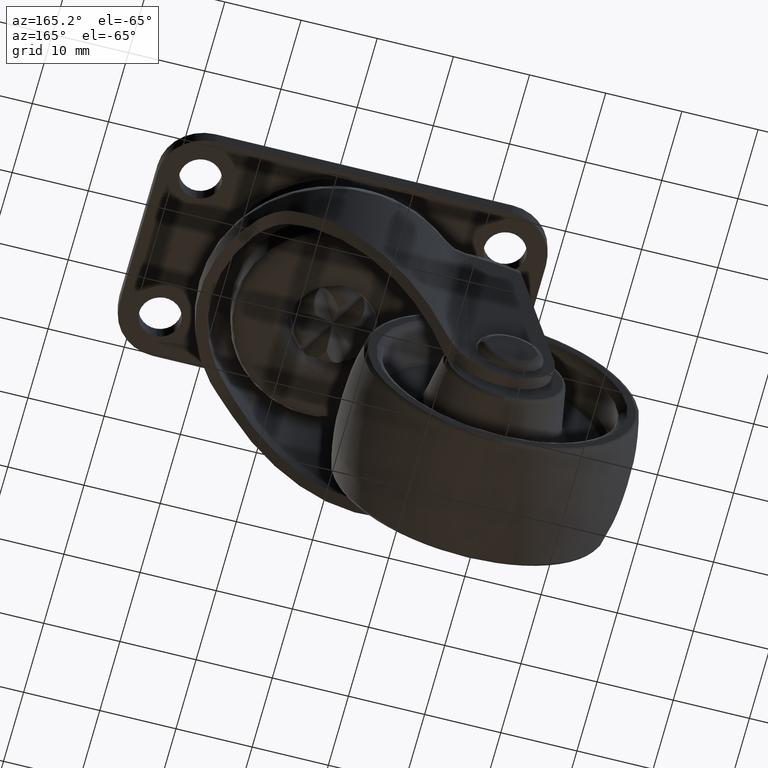
[diagram: clean part render]
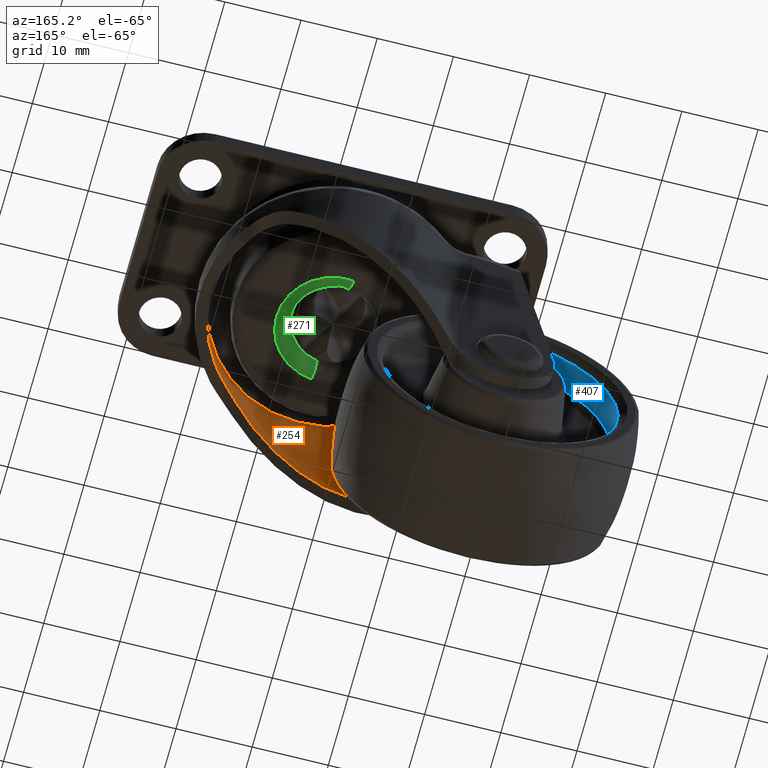
[diagram: same view with three faces highlighted in distinct colors, each labeled with its STEP entity id]
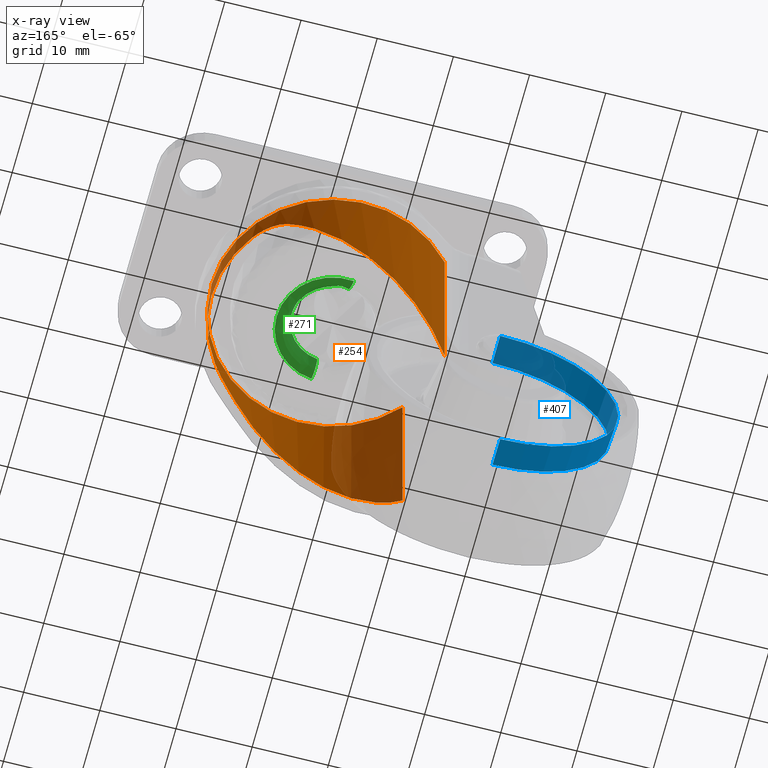
[diagram: x-ray of the same camera — body ghosted, the three highlighted faces saturated]
A machine part, auxiliary view with three faces highlighted in distinct colors.
The next image is the same camera in x-ray (body ghosted, the three faces saturated) — at least one of them is partly hidden behind the body in this view.
Their STEP definitions:

[orange] entity #254 — the highlighted cylindrical surface (partial cylindrical patch) has radius 15.9 mm, axis along (-0, 0, -1).
#254=ADVANCED_FACE('',(#729),#728,.F.);
#728=CYLINDRICAL_SURFACE('',#2879,1.59000000000E+01);
#729=FACE_OUTER_BOUND('',#2880,.T.);
#2876=CARTESIAN_POINT('',(2.00000000000E+01,-6.71818376752E-15,1.30946388245E+01));
#2877=DIRECTION('',(-1.26364830666E-16,1.52457479384E-16,-1.00000000000E+00));
#2878=DIRECTION('',(-9.99934908129E-01,-1.14096233274E-02,1.24617122930E-16));
#2879=AXIS2_PLACEMENT_3D('',#2876,#2877,#2878);
#2880=EDGE_LOOP('',(#5383,#5384,#5385,#5386,#5387,#5388,#5389,#5390));
#5383=ORIENTED_EDGE('',*,*,#6358,.F.);
#5384=ORIENTED_EDGE('',*,*,#6280,.T.);
#5385=ORIENTED_EDGE('',*,*,#6359,.T.);
#5386=ORIENTED_EDGE('',*,*,#6348,.T.);
#5387=ORIENTED_EDGE('',*,*,#6341,.T.);
#5388=ORIENTED_EDGE('',*,*,#6338,.T.);
#5389=ORIENTED_EDGE('',*,*,#6345,.T.);
#5390=ORIENTED_EDGE('',*,*,#6353,.T.);
#6280=EDGE_CURVE('',#6899,#6892,#6900,.T.);
#6338=EDGE_CURVE('',#7288,#7281,#7289,.T.);
#6341=EDGE_CURVE('',#7308,#7288,#7309,.T.);
#6345=EDGE_CURVE('',#7281,#7328,#7335,.T.);
#6348=EDGE_CURVE('',#7353,#7308,#7354,.T.);
#6353=EDGE_CURVE('',#7328,#7378,#7385,.T.);
#6358=EDGE_CURVE('',#6899,#7378,#7416,.T.);
#6359=EDGE_CURVE('',#6892,#7353,#7422,.T.);
#6892=VERTEX_POINT('',#10292);
#6899=VERTEX_POINT('',#10321);
#6900=CIRCLE('',#10325,1.59000000000E+01);
#7281=VERTEX_POINT('',#10684);
#7288=VERTEX_POINT('',#10688);
#7289=CIRCLE('',#10692,1.59000000000E+01);
#7308=VERTEX_POINT('',#10717);
#7309=(BOUNDED_CURVE() B_SPLINE_CURVE(3,(#10718,#10719,#10720,#10721,#10722,#10723,#10724,#10725,#10726,#10727,#10728,#10729,#10730,#10731,#10732,#10733,#10734,#10735,#10736,#10737,#10738,#10739,#10740,#10741,#10742),.UNSPECIFIED.,.F.,.F.) B_SPLINE_CURVE_WITH_KNOTS((4,2,2,2,2,2,2,2,2,2,2,1,4),(0.00000000000E+00,1.56250000000E-02,2.34375000000E-02,3.12500000000E-02,6.25000000000E-02,7.03125000000E-02,7.81250000000E-02,9.37500000000E-02,1.25000000000E-01,1.56250000000E-01,1.64062500000E-01,1.71875000000E-01,1.80882617281E-01),.UNSPECIFIED.) CURVE() GEOMETRIC_REPRESENTATION_ITEM() RATIONAL_B_SPLINE_CURVE((1.00000000000E+00,1.00000000000E+00,1.00000000000E+00,1.00000000000E+00,1.00000000000E+00,1.00000000000E+00,1.00000000000E+00,1.00000000000E+00,1.00000000000E+00,1.00000000000E+00,1.00000000000E+00,1.00000000000E+00,1.00000000000E+00,1.00000000000E+00,1.00000000000E+00,1.00000000000E+00,1.00000000000E+00,1.00000000000E+00,1.00000000000E+00,1.00000000000E+00,1.00000000000E+00,1.00000000000E+00,1.00000000000E+00,1.00000000000E+00,1.00000000000E+00)) REPRESENTATION_ITEM('') );
#7328=VERTEX_POINT('',#10769);
#7335=(BOUNDED_CURVE() B_SPLINE_CURVE(3,(#10773,#10774,#10775,#10776,#10777,#10778,#10779,#10780,#10781,#10782,#10783,#10784,#10785,#10786,#10787,#10788,#10789,#10790,#10791,#10792,#10793,#10794),.UNSPECIFIED.,.F.,.F.) B_SPLINE_CURVE_WITH_KNOTS((4,2,2,2,2,2,2,2,2,2,4),(8.18733335060E-01,8.43750000000E-01,8.75000000000E-01,8.82812500000E-01,8.90625000000E-01,9.06250000000E-01,9.37500000000E-01,9.45312500000E-01,9.53125000000E-01,9.68750000000E-01,1.00000000000E+00),.UNSPECIFIED.) CURVE() GEOMETRIC_REPRESENTATION_ITEM() RATIONAL_B_SPLINE_CURVE((1.00000000000E+00,1.00000000000E+00,1.00000000000E+00,1.00000000000E+00,1.00000000000E+00,1.00000000000E+00,1.00000000000E+00,1.00000000000E+00,1.00000000000E+00,1.00000000000E+00,1.00000000000E+00,1.00000000000E+00,1.00000000000E+00,1.00000000000E+00,1.00000000000E+00,1.00000000000E+00,1.00000000000E+00,1.00000000000E+00,1.00000000000E+00,1.00000000000E+00,1.00000000000E+00,1.00000000000E+00)) REPRESENTATION_ITEM('') );
#7353=VERTEX_POINT('',#10801);
#7354=(BOUNDED_CURVE() B_SPLINE_CURVE(2,(#10802,#10803,#10804),.UNSPECIFIED.,.F.,.F.) B_SPLINE_CURVE_WITH_KNOTS((3,3),(0.00000000000E+00,1.00000000000E+00),.UNSPECIFIED.) CURVE() GEOMETRIC_REPRESENTATION_ITEM() RATIONAL_B_SPLINE_CURVE((1.00000000000E+00,7.39544937809E-01,1.00000000000E+00)) REPRESENTATION_ITEM('') );
#7378=VERTEX_POINT('',#10814);
#7385=(BOUNDED_CURVE() B_SPLINE_CURVE(2,(#10818,#10819,#10820),.UNSPECIFIED.,.F.,.F.) B_SPLINE_CURVE_WITH_KNOTS((3,3),(0.00000000000E+00,1.00000000000E+00),.UNSPECIFIED.) CURVE() GEOMETRIC_REPRESENTATION_ITEM() RATIONAL_B_SPLINE_CURVE((1.00000000000E+00,7.39544937809E-01,1.00000000000E+00)) REPRESENTATION_ITEM('') );
#7416=LINE('',#10835,#10836);
#7422=LINE('',#10838,#10839);
#10292=CARTESIAN_POINT('',(8.06015075472E+00,1.05000000000E+01,2.71000010000E+01));
#10321=CARTESIAN_POINT('',(8.06015075472E+00,-1.05000000000E+01,2.71000010000E+01));
#10322=CARTESIAN_POINT('',(2.00000000000E+01,-1.21196759247E-14,2.71000010000E+01));
#10323=DIRECTION('',(-3.89110780775E-16,4.42468958302E-16,1.00000000000E+00));
#10324=DIRECTION('',(-7.50933914797E-01,-6.60377358491E-01,-7.21568552210E-32));
#10325=AXIS2_PLACEMENT_3D('',#10322,#10323,#10324);
#10684=CARTESIAN_POINT('',(3.30000000000E+01,-9.15478017213E+00,2.35999980000E+01));
#10688=CARTESIAN_POINT('',(3.30000000000E+01,9.15478017213E+00,2.35999980000E+01));
#10689=CARTESIAN_POINT('',(2.00000000000E+01,0.00000000000E+00,2.35999980000E+01));
#10690=DIRECTION('',(7.30750806130E-16,5.14604845440E-16,-1.00000000000E+00));
#10691=DIRECTION('',(-8.17610062893E-01,-5.75772337870E-01,-8.93764447497E-16));
#10692=AXIS2_PLACEMENT_3D('',#10689,#10690,#10691);
#10717=CARTESIAN_POINT('',(2.93330574588E+01,1.28726080679E+01,2.19990467492E+01));
#10718=CARTESIAN_POINT('',(2.93330574588E+01,1.28726080679E+01,2.19990467492E+01));
#10719=CARTESIAN_POINT('',(2.94313620775E+01,1.28013340378E+01,2.21050991818E+01));
#10720=CARTESIAN_POINT('',(2.95330233512E+01,1.27259096772E+01,2.22055581714E+01));
#10721=CARTESIAN_POINT('',(2.96899938081E+01,1.26062820780E+01,2.23481784676E+01));
#10722=CARTESIAN_POINT('',(2.97431838937E+01,1.25652291336E+01,2.23944684040E+01));
#10723=CARTESIAN_POINT('',(2.98502042771E+01,1.24815099753E+01,2.24837646899E+01));
#10724=CARTESIAN_POINT('',(2.99040570025E+01,1.24388294855E+01,2.25268022189E+01));
#10725=CARTESIAN_POINT('',(3.01747880713E+01,1.22213286081E+01,2.27343236087E+01));
#10726=CARTESIAN_POINT('',(3.03960082045E+01,1.20342438227E+01,2.28759428934E+01));
#10727=CARTESIAN_POINT('',(3.06751258663E+01,1.17837733102E+01,2.30270726704E+01));
#10728=CARTESIAN_POINT('',(3.07310824385E+01,1.17328466958E+01,2.30559962826E+01));
#10729=CARTESIAN_POINT('',(3.08431933360E+01,1.16293155502E+01,2.31113273617E+01));
#10730=CARTESIAN_POINT('',(3.08994359475E+01,1.15766252405E+01,2.31377713774E+01));
#10731=CARTESIAN_POINT('',(3.10672319182E+01,1.14171012694E+01,2.32129616671E+01));
#10732=CARTESIAN_POINT('',(3.11781211569E+01,1.13085767409E+01,2.32577239903E+01));
#10733=CARTESIAN_POINT('',(3.15074795041E+01,1.09765712988E+01,2.33777587985E+01));
#10734=CARTESIAN_POINT('',(3.17226289121E+01,1.07466660345E+01,2.34388492546E+01));
#10735=CARTESIAN_POINT('',(3.21424118957E+01,1.02699899135E+01,2.35305863019E+01));
#10736=CARTESIAN_POINT('',(3.23470531472E+01,1.00232166153E+01,2.35611938148E+01));
#10737=CARTESIAN_POINT('',(3.25954069717E+01,9.70423929338E+00,2.35838511480E+01));
#10738=CARTESIAN_POINT('',(3.26447120825E+01,9.63990608094E+00,2.35875974986E+01));
#10739=CARTESIAN_POINT('',(3.27420633983E+01,9.51085449635E+00,2.35935785764E+01));
#10740=CARTESIAN_POINT('',(3.28456462751E+01,9.37133868512E+00,2.35984031391E+01));
#10741=CARTESIAN_POINT('',(3.29466452446E+01,9.23054546481E+00,2.35999989025E+01));
#10742=CARTESIAN_POINT('',(3.30000000000E+01,9.15478017213E+00,2.35999980000E+01));
#10769=CARTESIAN_POINT('',(2.93330574588E+01,-1.28726080679E+01,2.19990467492E+01));
#10773=CARTESIAN_POINT('',(3.30000000000E+01,-9.15478017213E+00,2.35999980000E+01));
#10774=CARTESIAN_POINT('',(3.28519669519E+01,-9.36499247327E+00,2.36000062339E+01));
#10775=CARTESIAN_POINT('',(3.26990463919E+01,-9.57131458009E+00,2.35934424310E+01));
#10776=CARTESIAN_POINT('',(3.23442421788E+01,-1.00265865008E+01,2.35607550777E+01));
#10777=CARTESIAN_POINT('',(3.21396512508E+01,-1.02733489473E+01,2.35302017413E+01));
#10778=CARTESIAN_POINT('',(3.18745772393E+01,-1.05740640941E+01,2.34719939273E+01));
#10779=CARTESIAN_POINT('',(3.18211039641E+01,-1.06338067523E+01,2.34593436477E+01));
#10780=CARTESIAN_POINT('',(3.17138705957E+01,-1.07518175747E+01,2.34320688226E+01));
#10781=CARTESIAN_POINT('',(3.16600340665E+01,-1.08101732193E+01,2.34174282887E+01));
#10782=CARTESIAN_POINT('',(3.14979231063E+01,-1.09832943500E+01,2.33703657535E+01));
#10783=CARTESIAN_POINT('',(3.13890462840E+01,-1.10961146038E+01,2.33348066134E+01));
#10784=CARTESIAN_POINT('',(3.10605036340E+01,-1.14268030162E+01,2.32144052588E+01));
#10785=CARTESIAN_POINT('',(3.08388964177E+01,-1.16369123782E+01,2.31159412586E+01));
#10786=CARTESIAN_POINT('',(3.05606455880E+01,-1.18864775069E+01,2.29650349293E+01));
#10787=CARTESIAN_POINT('',(3.05049356199E+01,-1.19357358887E+01,2.29334543353E+01));
#10788=CARTESIAN_POINT('',(3.03934564400E+01,-1.20329351082E+01,2.28673299363E+01));
#10789=CARTESIAN_POINT('',(3.03375618376E+01,-1.20809813371E+01,2.28327029494E+01));
#10790=CARTESIAN_POINT('',(3.01709812836E+01,-1.22222065591E+01,2.27248194710E+01));
#10791=CARTESIAN_POINT('',(3.00614500023E+01,-1.23124443976E+01,2.26476338814E+01));
#10792=CARTESIAN_POINT('',(2.97384210049E+01,-1.25717707689E+01,2.23994521138E+01));
#10793=CARTESIAN_POINT('',(2.95304139852E+01,-1.27295181650E+01,2.22119576149E+01));
#10794=CARTESIAN_POINT('',(2.93330574588E+01,-1.28726080679E+01,2.19990467492E+01));
#10801=CARTESIAN_POINT('',(8.06015075472E+00,1.05000000000E+01,-9.10722756674E-01));
#10802=CARTESIAN_POINT('',(8.06015075472E+00,1.05000000000E+01,-9.10722756674E-01));
#10803=CARTESIAN_POINT('',(1.76168728691E+01,2.13672210785E+01,9.38134987435E+00));
#10804=CARTESIAN_POINT('',(2.93330574588E+01,1.28726080679E+01,2.19990467492E+01));
#10814=CARTESIAN_POINT('',(8.06015075472E+00,-1.05000000000E+01,-9.10722756674E-01));
#10818=CARTESIAN_POINT('',(2.93330574588E+01,-1.28726080679E+01,2.19990467492E+01));
#10819=CARTESIAN_POINT('',(1.76168728691E+01,-2.13672210785E+01,9.38134987435E+00));
#10820=CARTESIAN_POINT('',(8.06015075472E+00,-1.05000000000E+01,-9.10722756674E-01));
#10835=CARTESIAN_POINT('',(8.06015075472E+00,-1.05000000000E+01,2.71000010000E+01));
#10836=VECTOR('',#10837,2.80107237567E+01);
#10837=DIRECTION('',(0.00000000000E+00,0.00000000000E+00,-1.00000000000E+00));
#10838=CARTESIAN_POINT('',(8.06015075472E+00,1.05000000000E+01,2.71000010000E+01));
#10839=VECTOR('',#10840,2.80107237567E+01);
#10840=DIRECTION('',(0.00000000000E+00,0.00000000000E+00,-1.00000000000E+00));

[blue] entity #407 — the highlighted face is a freeform B-spline surface patch.
#407=ADVANCED_FACE('',(#2322),#2321,.F.);
#2321=( BOUNDED_SURFACE() B_SPLINE_SURFACE( 2,1,((#5050,#5051),(#5052,#5053),(#5054,#5055),(#5056,#5057),(#5058,#5059)), .UNSPECIFIED.,.F.,.F.,.F.) B_SPLINE_SURFACE_WITH_KNOTS((3,2,3),(2,2),(0.00000000000E+00,5.00000000000E-01,1.00000000000E+00),(0.00000000000E+00,1.00000000000E+00), .UNSPECIFIED. ) GEOMETRIC_REPRESENTATION_ITEM() RATIONAL_B_SPLINE_SURFACE(((1.00000000000E+00,1.00000000000E+00),(7.07106781187E-01,7.07106781187E-01),(1.00000000000E+00,1.00000000000E+00),(7.07106781187E-01,7.07106781187E-01),(1.00000000000E+00,1.00000000000E+00))) REPRESENTATION_ITEM('') SURFACE() );
#2322=FACE_OUTER_BOUND('',#5060,.T.);
#5050=CARTESIAN_POINT('',(3.74965611232E+00,9.20993492241E-15,-1.52615368804E+01));
#5051=CARTESIAN_POINT('',(7.56292985960E+00,9.41922621564E-15,-1.55019822362E+01));
#5052=CARTESIAN_POINT('',(3.74965611232E+00,1.52615368804E+01,-1.52615368804E+01));
#5053=CARTESIAN_POINT('',(7.56292985960E+00,1.55019822362E+01,-1.55019822362E+01));
#5054=CARTESIAN_POINT('',(3.74965611232E+00,1.52615368804E+01,7.40846630481E-15));
#5055=CARTESIAN_POINT('',(7.56292985960E+00,1.55019822362E+01,7.52518661486E-15));
#5056=CARTESIAN_POINT('',(3.74965611232E+00,1.52615368804E+01,1.52615368804E+01));
#5057=CARTESIAN_POINT('',(7.56292985960E+00,1.55019822362E+01,1.55019822362E+01));
#5058=CARTESIAN_POINT('',(3.74965611232E+00,-5.60699768721E-15,1.52615368804E+01));
#5059=CARTESIAN_POINT('',(7.56292985960E+00,-5.63114701408E-15,1.55019822362E+01));
#5060=EDGE_LOOP('',(#6225,#6226,#6227,#6228));
#6225=ORIENTED_EDGE('',*,*,#6754,.F.);
#6226=ORIENTED_EDGE('',*,*,#6751,.F.);
#6227=ORIENTED_EDGE('',*,*,#6747,.T.);
#6228=ORIENTED_EDGE('',*,*,#6753,.T.);
#6747=EDGE_CURVE('',#10009,#10010,#10011,.T.);
#6751=EDGE_CURVE('',#10009,#10035,#10036,.T.);
#6753=EDGE_CURVE('',#10010,#10042,#10049,.T.);
#6754=EDGE_CURVE('',#10035,#10042,#10055,.T.);
#10009=VERTEX_POINT('',#13933);
#10010=VERTEX_POINT('',#13934);
#10011=CIRCLE('',#13938,1.52615368804E+01);
#10035=VERTEX_POINT('',#13950);
#10036=(BOUNDED_CURVE() B_SPLINE_CURVE(1,(#13951,#13952),.UNSPECIFIED.,.F.,.F.) B_SPLINE_CURVE_WITH_KNOTS((2,2),(0.00000000000E+00,1.00000000000E+00),.UNSPECIFIED.) CURVE() GEOMETRIC_REPRESENTATION_ITEM() RATIONAL_B_SPLINE_CURVE((1.00000000000E+00,1.00000000000E+00)) REPRESENTATION_ITEM('') );
#10042=VERTEX_POINT('',#13953);
#10049=(BOUNDED_CURVE() B_SPLINE_CURVE(1,(#13958,#13959),.UNSPECIFIED.,.F.,.F.) B_SPLINE_CURVE_WITH_KNOTS((2,2),(0.00000000000E+00,1.00000000000E+00),.UNSPECIFIED.) CURVE() GEOMETRIC_REPRESENTATION_ITEM() RATIONAL_B_SPLINE_CURVE((7.50000000000E-01,7.50000000000E-01)) REPRESENTATION_ITEM('') );
#10055=CIRCLE('',#13963,1.55019822362E+01);
#13933=CARTESIAN_POINT('',(3.74965611232E+00,-3.05317539621E-15,1.52615368804E+01));
#13934=CARTESIAN_POINT('',(3.74965611232E+00,0.00000000000E+00,-1.52615368804E+01));
#13935=CARTESIAN_POINT('',(3.74965611232E+00,0.00000000000E+00,0.00000000000E+00));
#13936=DIRECTION('',(-1.00000000000E+00,0.00000000000E+00,0.00000000000E+00));
#13937=DIRECTION('',(-0.00000000000E+00,-7.75962409429E-17,1.00000000000E+00));
#13938=AXIS2_PLACEMENT_3D('',#13935,#13936,#13937);
#13950=CARTESIAN_POINT('',(7.56292985960E+00,-1.00660220899E-14,1.55019822362E+01));
#13951=CARTESIAN_POINT('',(3.74965611232E+00,-9.34499614534E-15,1.52615368804E+01));
#13952=CARTESIAN_POINT('',(7.56292985960E+00,-9.42803759928E-15,1.55019822362E+01));
#13953=CARTESIAN_POINT('',(7.56292985960E+00,1.77635683940E-15,-1.55019822362E+01));
#13958=CARTESIAN_POINT('',(3.74965611232E+00,1.06581410364E-14,-1.52615368804E+01));
#13959=CARTESIAN_POINT('',(7.56292985960E+00,1.12502599829E-14,-1.55019822362E+01));
#13960=CARTESIAN_POINT('',(7.56292985960E+00,0.00000000000E+00,0.00000000000E+00));
#13961=DIRECTION('',(-1.00000000000E+00,0.00000000000E+00,0.00000000000E+00));
#13962=DIRECTION('',(0.00000000000E+00,2.37049648086E-16,-1.00000000000E+00));
#13963=AXIS2_PLACEMENT_3D('',#13960,#13961,#13962);

[green] entity #271 — the highlighted face is a freeform B-spline surface patch.
#271=ADVANCED_FACE('',(#905),#904,.T.);
#904=( BOUNDED_SURFACE() B_SPLINE_SURFACE( 2,2,((#3009,#3010,#3011,#3012,#3013),(#3014,#3015,#3016,#3017,#3018),(#3019,#3020,#3021,#3022,#3023),(#3024,#3025,#3026,#3027,#3028),(#3029,#3030,#3031,#3032,#3033)), .UNSPECIFIED.,.F.,.F.,.F.) B_SPLINE_SURFACE_WITH_KNOTS((3,2,3),(3,2,3),(0.00000000000E+00,5.00000000000E-01,1.00000000000E+00),(0.00000000000E+00,5.00000000000E-01,1.00000000000E+00), .UNSPECIFIED. ) GEOMETRIC_REPRESENTATION_ITEM() RATIONAL_B_SPLINE_SURFACE(((1.00000000000E+00,7.07106780769E-01,1.00000000000E+00,7.07106780769E-01,1.00000000000E+00),(7.07106781187E-01,4.99999999705E-01,7.07106781187E-01,4.99999999705E-01,7.07106781187E-01),(1.00000000000E+00,7.07106780769E-01,1.00000000000E+00,7.07106780769E-01,1.00000000000E+00),(7.07106781187E-01,4.99999999705E-01,7.07106781187E-01,4.99999999705E-01,7.07106781187E-01),(1.00000000000E+00,7.07106780769E-01,1.00000000000E+00,7.07106780769E-01,1.00000000000E+00))) REPRESENTATION_ITEM('') SURFACE() );
#905=FACE_OUTER_BOUND('',#3034,.T.);
#3009=CARTESIAN_POINT('',(1.89185471493E+01,9.30349395324E+00,2.40227903966E+01));
#3010=CARTESIAN_POINT('',(1.89185471493E+01,9.30349395324E+00,2.20227903942E+01));
#3011=CARTESIAN_POINT('',(1.91494753842E+01,7.31687064727E+00,2.20227903966E+01));
#3012=CARTESIAN_POINT('',(1.93804036192E+01,5.33024734131E+00,2.20227903990E+01));
#3013=CARTESIAN_POINT('',(1.93804036187E+01,5.33024734600E+00,2.40227904013E+01));
#3014=CARTESIAN_POINT('',(2.82220411025E+01,1.03849468039E+01,2.40227903966E+01));
#3015=CARTESIAN_POINT('',(2.82220411025E+01,1.03849468039E+01,2.20227903942E+01));
#3016=CARTESIAN_POINT('',(2.64663460315E+01,8.16739526303E+00,2.20227903966E+01));
#3017=CARTESIAN_POINT('',(2.47106509605E+01,5.94984372211E+00,2.20227903990E+01));
#3018=CARTESIAN_POINT('',(2.47106509647E+01,5.94984372735E+00,2.40227904013E+01));
#3019=CARTESIAN_POINT('',(2.93034939532E+01,1.08145285070E+00,2.40227903966E+01));
#3020=CARTESIAN_POINT('',(2.93034939532E+01,1.08145285070E+00,2.20227903942E+01));
#3021=CARTESIAN_POINT('',(2.73168706473E+01,8.50524615751E-01,2.20227903966E+01));
#3022=CARTESIAN_POINT('',(2.53302473413E+01,6.19596380799E-01,2.20227903990E+01));
#3023=CARTESIAN_POINT('',(2.53302473460E+01,6.19596381344E-01,2.40227904013E+01));
#3024=CARTESIAN_POINT('',(3.03849468039E+01,-8.22204110254E+00,2.40227903966E+01));
#3025=CARTESIAN_POINT('',(3.03849468039E+01,-8.22204110254E+00,2.20227903942E+01));
#3026=CARTESIAN_POINT('',(2.81673952630E+01,-6.46634603152E+00,2.20227903966E+01));
#3027=CARTESIAN_POINT('',(2.59498437221E+01,-4.71065096051E+00,2.20227903990E+01));
#3028=CARTESIAN_POINT('',(2.59498437273E+01,-4.71065096466E+00,2.40227904013E+01));
#3029=CARTESIAN_POINT('',(2.10814528507E+01,-9.30349395324E+00,2.40227903966E+01));
#3030=CARTESIAN_POINT('',(2.10814528507E+01,-9.30349395324E+00,2.20227903942E+01));
#3031=CARTESIAN_POINT('',(2.08505246157E+01,-7.31687064728E+00,2.20227903966E+01));
#3032=CARTESIAN_POINT('',(2.06195963808E+01,-5.33024734131E+00,2.20227903990E+01));
#3033=CARTESIAN_POINT('',(2.06195963813E+01,-5.33024734601E+00,2.40227904013E+01));
#3034=EDGE_LOOP('',(#5509,#5510,#5511,#5512,#5513,#5514,#5515));
#5509=ORIENTED_EDGE('',*,*,#6403,.F.);
#5510=ORIENTED_EDGE('',*,*,#6404,.F.);
#5511=ORIENTED_EDGE('',*,*,#6405,.F.);
#5512=ORIENTED_EDGE('',*,*,#6406,.F.);
#5513=ORIENTED_EDGE('',*,*,#6407,.F.);
#5514=ORIENTED_EDGE('',*,*,#6271,.T.);
#5515=ORIENTED_EDGE('',*,*,#6408,.T.);
#6271=EDGE_CURVE('',#6837,#6838,#6839,.T.);
#6403=EDGE_CURVE('',#7717,#7718,#7719,.T.);
#6404=EDGE_CURVE('',#7725,#7717,#7726,.T.);
#6405=EDGE_CURVE('',#7732,#7725,#7733,.T.);
#6406=EDGE_CURVE('',#7739,#7732,#7740,.T.);
#6407=EDGE_CURVE('',#6837,#7739,#7746,.T.);
#6408=EDGE_CURVE('',#6838,#7718,#7752,.T.);
#6837=VERTEX_POINT('',#10184);
#6838=VERTEX_POINT('',#10185);
#6839=CIRCLE('',#10189,7.36613794501E+00);
#7717=VERTEX_POINT('',#11069);
#7718=VERTEX_POINT('',#11070);
#7719=CIRCLE('',#11074,5.36613794512E+00);
#7725=VERTEX_POINT('',#11075);
#7726=CIRCLE('',#11079,5.36613794504E+00);
#7732=VERTEX_POINT('',#11080);
#7733=CIRCLE('',#11084,5.36613794504E+00);
#7739=VERTEX_POINT('',#11085);
#7740=CIRCLE('',#11089,5.36613794510E+00);
#7746=(BOUNDED_CURVE() B_SPLINE_CURVE(2,(#11090,#11091,#11092),.UNSPECIFIED.,.F.,.F.) B_SPLINE_CURVE_WITH_KNOTS((3,3),(5.00000000000E-01,1.00000000000E+00),.UNSPECIFIED.) CURVE() GEOMETRIC_REPRESENTATION_ITEM() RATIONAL_B_SPLINE_CURVE((1.00000000000E+00,7.07106780769E-01,1.00000000000E+00)) REPRESENTATION_ITEM('') );
#7752=(BOUNDED_CURVE() B_SPLINE_CURVE(2,(#11093,#11094,#11095),.UNSPECIFIED.,.F.,.F.) B_SPLINE_CURVE_WITH_KNOTS((3,3),(5.00000008031E-01,1.00000000000E+00),.UNSPECIFIED.) CURVE() GEOMETRIC_REPRESENTATION_ITEM() RATIONAL_B_SPLINE_CURVE((7.49999992943E-01,5.30330089105E-01,7.50000000000E-01)) REPRESENTATION_ITEM('') );
#10184=CARTESIAN_POINT('',(1.91494753840E+01,7.31687064955E+00,2.20227903966E+01));
#10185=CARTESIAN_POINT('',(2.08517826483E+01,-7.31672430431E+00,2.20227903966E+01));
#10186=CARTESIAN_POINT('',(2.00000000000E+01,-1.97433180915E-11,2.20227903966E+01));
#10187=DIRECTION('',(1.49053977300E-14,1.73262700494E-15,-1.00000000000E+00));
#10188=DIRECTION('',(1.15634903210E-01,-9.93291784502E-01,2.58005419146E-18));
#10189=AXIS2_PLACEMENT_3D('',#10186,#10187,#10188);
#11069=CARTESIAN_POINT('',(2.53661379450E+01,1.13511900000E-16,2.40227903964E+01));
#11070=CARTESIAN_POINT('',(2.06195969824E+01,-5.33024727613E+00,2.40227903963E+01));
#11071=CARTESIAN_POINT('',(1.99999999999E+01,6.11999340094E-11,2.40227903961E+01));
#11072=DIRECTION('',(6.76984431311E-11,-3.29346955123E-11,-1.00000000000E+00));
#11073=DIRECTION('',(-1.00000000000E+00,1.14048168574E-11,-6.76984431315E-11));
#11074=AXIS2_PLACEMENT_3D('',#11071,#11072,#11073);
#11075=CARTESIAN_POINT('',(2.50229608371E+01,1.88820043277E+00,2.40227903965E+01));
#11076=CARTESIAN_POINT('',(2.00000000000E+01,2.16893170091E-12,2.40227903964E+01));
#11077=DIRECTION('',(-2.92477016978E-14,2.93211783198E-11,-1.00000000000E+00));
#11078=DIRECTION('',(-9.36143516466E-01,-3.51618140286E-01,-1.02824781455E-11));
#11079=AXIS2_PLACEMENT_3D('',#11076,#11077,#11078);
#11080=CARTESIAN_POINT('',(1.96724051154E+01,5.35612901608E+00,2.40227903966E+01));
#11081=CARTESIAN_POINT('',(2.00000000000E+01,2.16893170091E-12,2.40227903964E+01));
#11082=DIRECTION('',(-2.92477016978E-14,2.93211783198E-11,-1.00000000000E+00));
#11083=DIRECTION('',(-9.36143516466E-01,-3.51618140286E-01,-1.02824781455E-11));
#11084=AXIS2_PLACEMENT_3D('',#11081,#11082,#11083);
#11085=CARTESIAN_POINT('',(1.93804036187E+01,5.33024734599E+00,2.40227903966E+01));
#11086=CARTESIAN_POINT('',(2.00000000001E+01,-4.77267114718E-11,2.40227903966E+01));
#11087=DIRECTION('',(-6.62061563659E-16,1.25181653215E-15,-1.00000000000E+00));
#11088=DIRECTION('',(1.00000000000E+00,-8.89405228864E-12,-6.62061563670E-16));
#11089=AXIS2_PLACEMENT_3D('',#11086,#11087,#11088);
#11090=CARTESIAN_POINT('',(1.91494753842E+01,7.31687064727E+00,2.20227903966E+01));
#11091=CARTESIAN_POINT('',(1.93804036192E+01,5.33024734131E+00,2.20227903990E+01));
#11092=CARTESIAN_POINT('',(1.93804036187E+01,5.33024734600E+00,2.40227904013E+01));
#11093=CARTESIAN_POINT('',(2.08505246105E+01,-7.31687060215E+00,2.20227903966E+01));
#11094=CARTESIAN_POINT('',(2.06195963808E+01,-5.33024734131E+00,2.20227904444E+01));
#11095=CARTESIAN_POINT('',(2.06195963813E+01,-5.33024734601E+00,2.40227904013E+01));